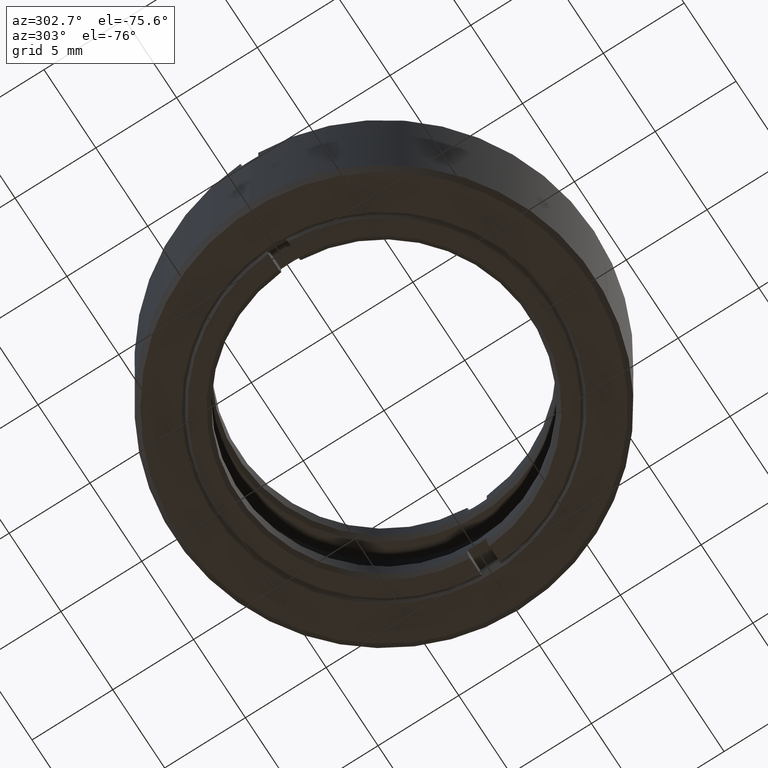
[diagram: clean part render]
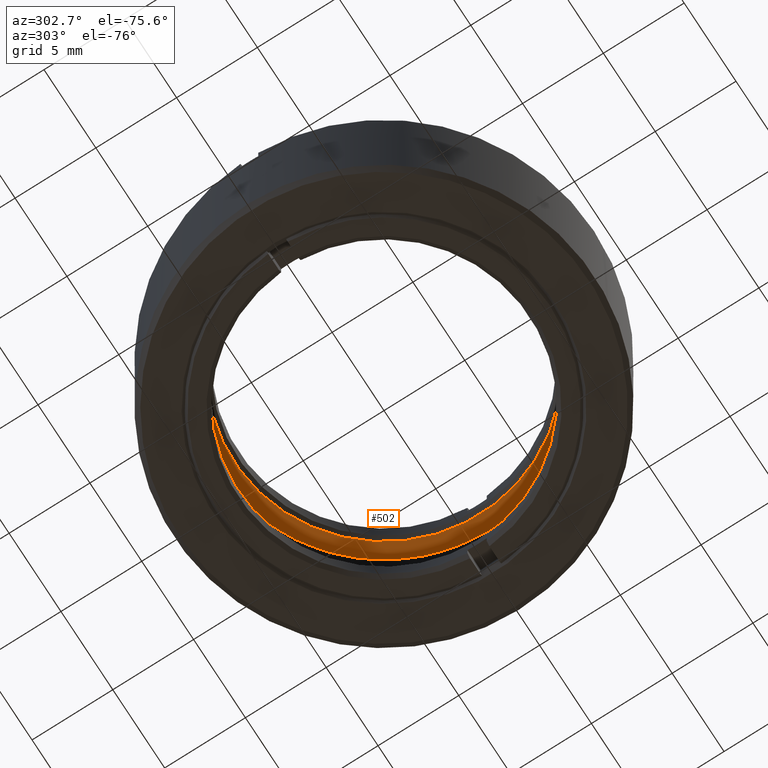
[diagram: same view with one face highlighted and labeled with its STEP entity id]
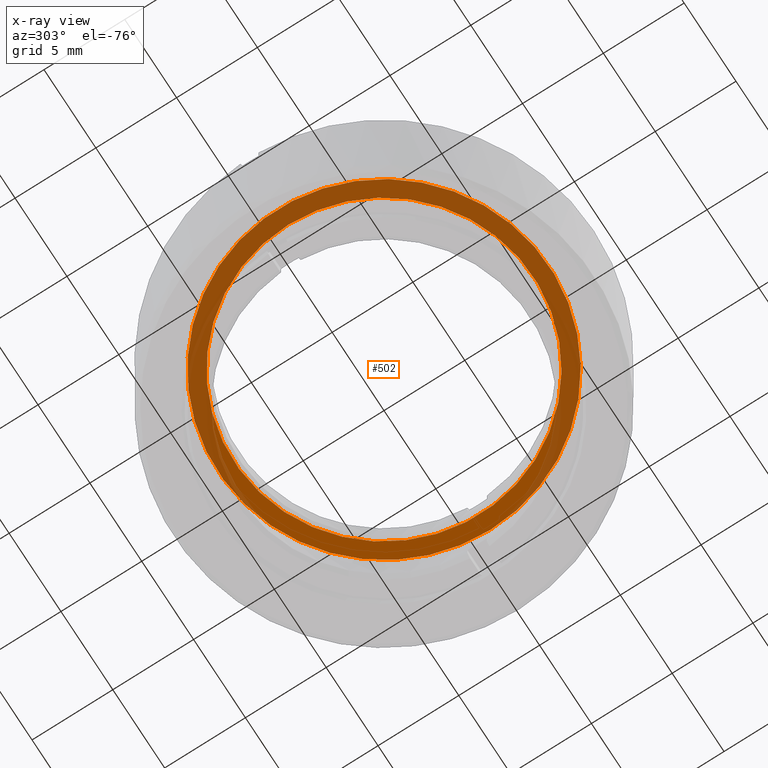
[diagram: x-ray of the same camera — body ghosted, the highlighted face saturated]
A machine part, auxiliary view. The second image highlights one B-rep face of the part: STEP entity #502.
The next image is the same camera in x-ray: the body ghosted, the highlighted face saturated — about 68% of this face is hidden behind the body in this view.
In plain terms, the highlighted planar face has unit normal (0, 0, 1).
Its self-contained STEP definition (entity closure, byte-faithful):
#127 = CARTESIAN_POINT ( 'NONE',  ( 0.000000000000000000, 0.000000000000000000, 3.000000000000000000 ) ) ;
#134 = FACE_BOUND ( 'NONE', #760, .T. ) ;
#185 = CARTESIAN_POINT ( 'NONE',  ( 10.25000000000000000, 0.000000000000000000, 3.000000000000000000 ) ) ;
#240 = EDGE_CURVE ( 'NONE', #1560, #1560, #373, .T. ) ;
#310 = PLANE ( 'NONE',  #581 ) ;
#337 = VERTEX_POINT ( 'NONE', #1102 ) ;
#373 = CIRCLE ( 'NONE', #1280, 10.25000000000000000 ) ;
#502 = ADVANCED_FACE ( 'NONE', ( #134, #620 ), #310, .F. ) ;
#536 = DIRECTION ( 'NONE',  ( -1.000000000000000000, 0.000000000000000000, 0.000000000000000000 ) ) ;
#581 = AXIS2_PLACEMENT_3D ( 'NONE', #127, #1141, #745 ) ;
#620 = FACE_OUTER_BOUND ( 'NONE', #803, .T. ) ;
#745 = DIRECTION ( 'NONE',  ( 1.000000000000000000, 0.000000000000000000, -0.000000000000000000 ) ) ;
#760 = EDGE_LOOP ( 'NONE', ( #993 ) ) ;
#803 = EDGE_LOOP ( 'NONE', ( #820 ) ) ;
#820 = ORIENTED_EDGE ( 'NONE', *, *, #240, .F. ) ;
#895 = CARTESIAN_POINT ( 'NONE',  ( 0.000000000000000000, 0.000000000000000000, 3.000000000000000000 ) ) ;
#993 = ORIENTED_EDGE ( 'NONE', *, *, #1190, .F. ) ;
#1102 = CARTESIAN_POINT ( 'NONE',  ( -9.250000000000000000, 0.000000000000000000, 3.000000000000000000 ) ) ;
#1141 = DIRECTION ( 'NONE',  ( 0.000000000000000000, 0.000000000000000000, 1.000000000000000000 ) ) ;
#1174 = AXIS2_PLACEMENT_3D ( 'NONE', #895, #1395, #536 ) ;
#1185 = DIRECTION ( 'NONE',  ( 1.000000000000000000, 0.000000000000000000, 0.000000000000000000 ) ) ;
#1190 = EDGE_CURVE ( 'NONE', #337, #337, #1335, .T. ) ;
#1280 = AXIS2_PLACEMENT_3D ( 'NONE', #1420, #1314, #1185 ) ;
#1314 = DIRECTION ( 'NONE',  ( 0.000000000000000000, -0.000000000000000000, 1.000000000000000000 ) ) ;
#1335 = CIRCLE ( 'NONE', #1174, 9.250000000000000000 ) ;
#1395 = DIRECTION ( 'NONE',  ( 0.000000000000000000, 0.000000000000000000, -1.000000000000000000 ) ) ;
#1420 = CARTESIAN_POINT ( 'NONE',  ( 0.000000000000000000, 0.000000000000000000, 3.000000000000000000 ) ) ;
#1560 = VERTEX_POINT ( 'NONE', #185 ) ;